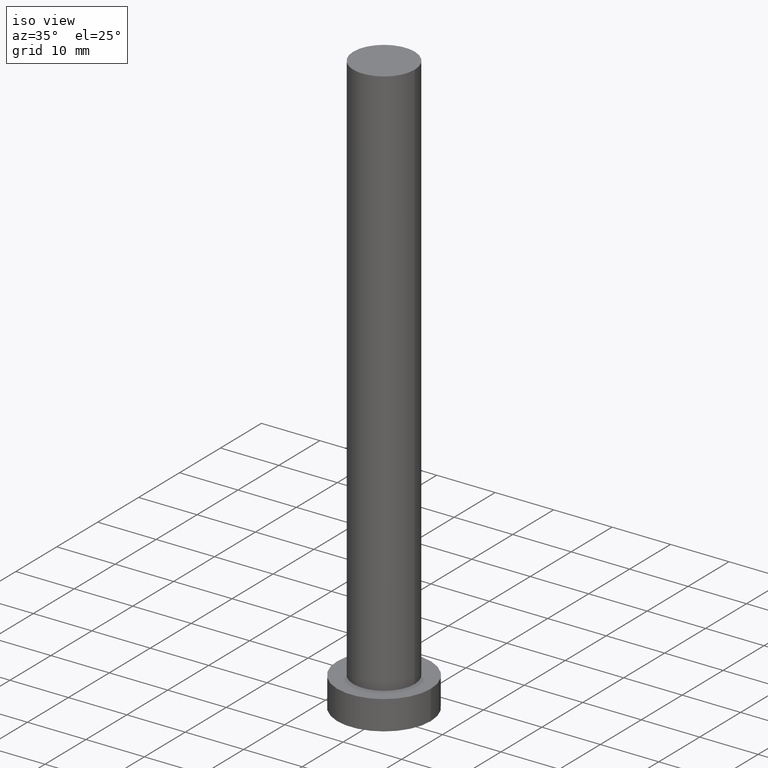
[diagram: clean part render]
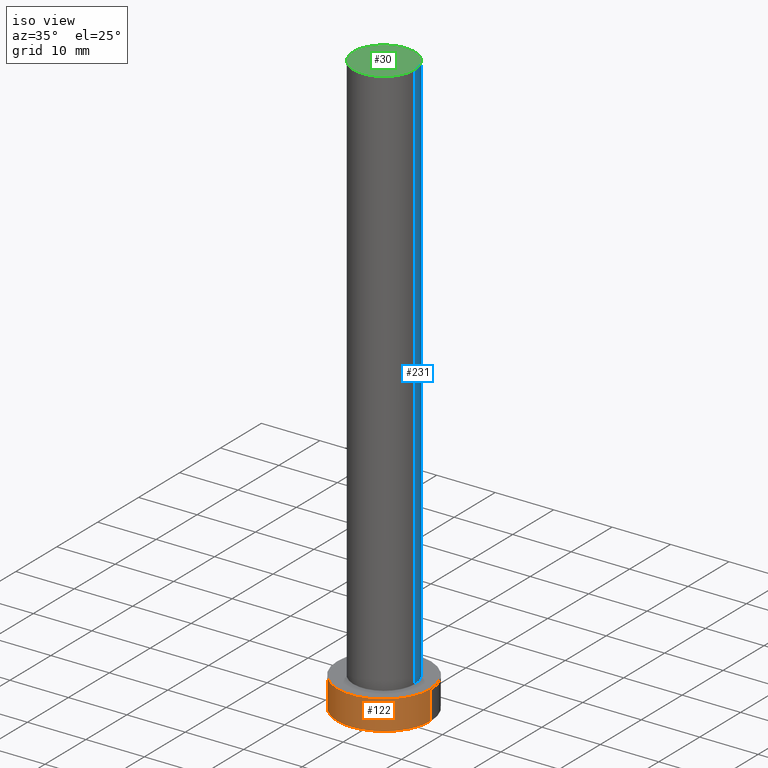
[diagram: same view with three faces highlighted in distinct colors, each labeled with its STEP entity id]
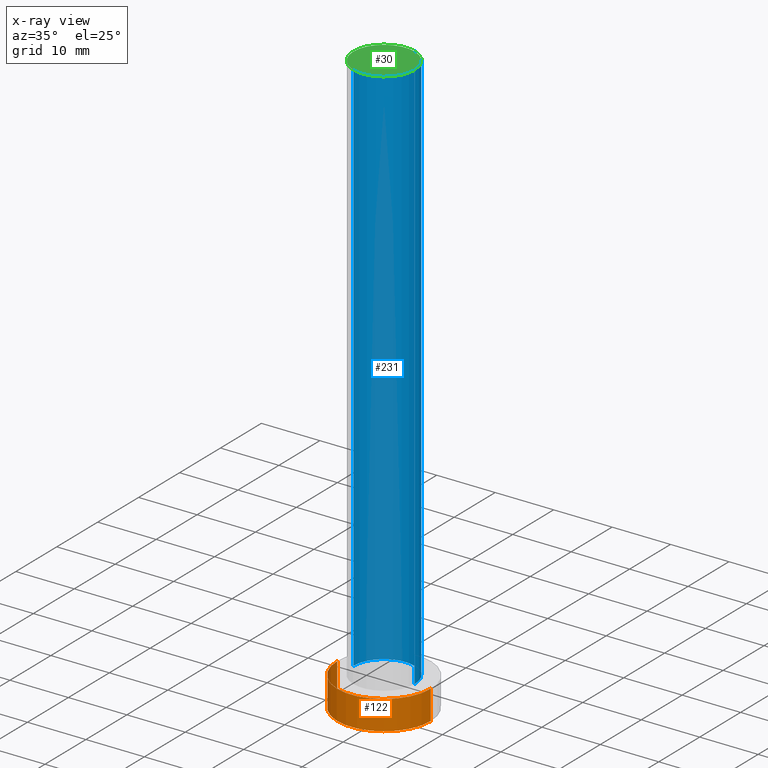
[diagram: x-ray of the same camera — body ghosted, the three highlighted faces saturated]
A machine part, iso view with three faces highlighted in distinct colors.
The next image is the same camera in x-ray (body ghosted, the three faces saturated) — at least one of them is partly hidden behind the body in this view.
Their STEP definitions:

[orange] entity #122 — the highlighted cylindrical surface (partial cylindrical patch) has radius 8 mm, axis along (-0, -0, -1).
#12 = DIRECTION ( 'NONE',  ( 0.000000000000000000, 0.000000000000000000, 1.000000000000000000 ) ) ;
#13 = CARTESIAN_POINT ( 'NONE',  ( 8.000000000000000000, 9.797174393178825657E-16, 5.000000000000000000 ) ) ;
#15 = CIRCLE ( 'NONE', #97, 8.000000000000000000 ) ;
#17 = DIRECTION ( 'NONE',  ( -1.000000000000000000, 0.000000000000000000, 0.000000000000000000 ) ) ;
#20 = VECTOR ( 'NONE', #125, 1000.000000000000000 ) ;
#22 = CARTESIAN_POINT ( 'NONE',  ( -8.000000000000000000, 0.000000000000000000, 0.000000000000000000 ) ) ;
#52 = VERTEX_POINT ( 'NONE', #248 ) ;
#57 = FACE_OUTER_BOUND ( 'NONE', #60, .T. ) ;
#60 = EDGE_LOOP ( 'NONE', ( #134, #133, #76, #199 ) ) ;
#76 = ORIENTED_EDGE ( 'NONE', *, *, #109, .T. ) ;
#90 = DIRECTION ( 'NONE',  ( -0.000000000000000000, -0.000000000000000000, -1.000000000000000000 ) ) ;
#94 = VERTEX_POINT ( 'NONE', #22 ) ;
#95 = CARTESIAN_POINT ( 'NONE',  ( -8.000000000000000000, 0.000000000000000000, 5.000000000000000000 ) ) ;
#96 = CARTESIAN_POINT ( 'NONE',  ( 0.000000000000000000, 0.000000000000000000, 5.000000000000000000 ) ) ;
#97 = AXIS2_PLACEMENT_3D ( 'NONE', #96, #255, #130 ) ;
#106 = CARTESIAN_POINT ( 'NONE',  ( 0.000000000000000000, 0.000000000000000000, 0.000000000000000000 ) ) ;
#109 = EDGE_CURVE ( 'NONE', #183, #94, #128, .T. ) ;
#114 = AXIS2_PLACEMENT_3D ( 'NONE', #213, #172, #17 ) ;
#115 = LINE ( 'NONE', #13, #204 ) ;
#116 = EDGE_CURVE ( 'NONE', #94, #178, #192, .T. ) ;
#122 = ADVANCED_FACE ( 'NONE', ( #57 ), #215, .T. ) ;
#125 = DIRECTION ( 'NONE',  ( -0.000000000000000000, -0.000000000000000000, -1.000000000000000000 ) ) ;
#128 = LINE ( 'NONE', #209, #20 ) ;
#130 = DIRECTION ( 'NONE',  ( 1.000000000000000000, 0.000000000000000000, 0.000000000000000000 ) ) ;
#133 = ORIENTED_EDGE ( 'NONE', *, *, #136, .F. ) ;
#134 = ORIENTED_EDGE ( 'NONE', *, *, #250, .F. ) ;
#136 = EDGE_CURVE ( 'NONE', #183, #52, #15, .T. ) ;
#170 = DIRECTION ( 'NONE',  ( 1.000000000000000000, 0.000000000000000000, 0.000000000000000000 ) ) ;
#172 = DIRECTION ( 'NONE',  ( -0.000000000000000000, -0.000000000000000000, -1.000000000000000000 ) ) ;
#176 = AXIS2_PLACEMENT_3D ( 'NONE', #106, #12, #170 ) ;
#178 = VERTEX_POINT ( 'NONE', #237 ) ;
#183 = VERTEX_POINT ( 'NONE', #95 ) ;
#192 = CIRCLE ( 'NONE', #176, 8.000000000000000000 ) ;
#199 = ORIENTED_EDGE ( 'NONE', *, *, #116, .T. ) ;
#204 = VECTOR ( 'NONE', #90, 1000.000000000000000 ) ;
#209 = CARTESIAN_POINT ( 'NONE',  ( -8.000000000000000000, 0.000000000000000000, 5.000000000000000000 ) ) ;
#213 = CARTESIAN_POINT ( 'NONE',  ( 0.000000000000000000, 0.000000000000000000, 5.000000000000000000 ) ) ;
#215 = CYLINDRICAL_SURFACE ( 'NONE', #114, 8.000000000000000000 ) ;
#237 = CARTESIAN_POINT ( 'NONE',  ( 8.000000000000000000, 9.797174393178825657E-16, 0.000000000000000000 ) ) ;
#248 = CARTESIAN_POINT ( 'NONE',  ( 8.000000000000000000, 9.797174393178825657E-16, 5.000000000000000000 ) ) ;
#250 = EDGE_CURVE ( 'NONE', #52, #178, #115, .T. ) ;
#255 = DIRECTION ( 'NONE',  ( 0.000000000000000000, 0.000000000000000000, 1.000000000000000000 ) ) ;

[blue] entity #231 — the highlighted cylindrical surface (partial cylindrical patch) has radius 5.25 mm, axis along (-0, -0, -1).
#5 = CARTESIAN_POINT ( 'NONE',  ( 0.000000000000000000, 0.000000000000000000, 100.0000000000000000 ) ) ;
#24 = CARTESIAN_POINT ( 'NONE',  ( -5.250000000000000888, 0.000000000000000000, 100.0000000000000000 ) ) ;
#25 = DIRECTION ( 'NONE',  ( -1.000000000000000000, 0.000000000000000000, 0.000000000000000000 ) ) ;
#27 = VECTOR ( 'NONE', #236, 1000.000000000000000 ) ;
#33 = DIRECTION ( 'NONE',  ( 0.000000000000000000, 0.000000000000000000, 1.000000000000000000 ) ) ;
#37 = VERTEX_POINT ( 'NONE', #24 ) ;
#39 = EDGE_CURVE ( 'NONE', #157, #37, #80, .T. ) ;
#47 = LINE ( 'NONE', #50, #228 ) ;
#50 = CARTESIAN_POINT ( 'NONE',  ( 5.250000000000000888, 6.429395695523605139E-16, 100.0000000000000000 ) ) ;
#55 = CIRCLE ( 'NONE', #225, 5.250000000000000888 ) ;
#58 = ORIENTED_EDGE ( 'NONE', *, *, #244, .T. ) ;
#61 = AXIS2_PLACEMENT_3D ( 'NONE', #5, #160, #25 ) ;
#63 = ORIENTED_EDGE ( 'NONE', *, *, #188, .T. ) ;
#74 = CARTESIAN_POINT ( 'NONE',  ( 5.250000000000000888, 6.429395695523605139E-16, 100.0000000000000000 ) ) ;
#80 = CIRCLE ( 'NONE', #131, 5.250000000000000888 ) ;
#87 = DIRECTION ( 'NONE',  ( -0.000000000000000000, -0.000000000000000000, -1.000000000000000000 ) ) ;
#93 = ORIENTED_EDGE ( 'NONE', *, *, #39, .F. ) ;
#110 = CARTESIAN_POINT ( 'NONE',  ( 0.000000000000000000, 0.000000000000000000, 5.000000000000000000 ) ) ;
#131 = AXIS2_PLACEMENT_3D ( 'NONE', #247, #206, #245 ) ;
#140 = CARTESIAN_POINT ( 'NONE',  ( -5.250000000000000888, 0.000000000000000000, 100.0000000000000000 ) ) ;
#157 = VERTEX_POINT ( 'NONE', #74 ) ;
#159 = CARTESIAN_POINT ( 'NONE',  ( -5.250000000000000888, 0.000000000000000000, 5.000000000000000000 ) ) ;
#160 = DIRECTION ( 'NONE',  ( -0.000000000000000000, -0.000000000000000000, -1.000000000000000000 ) ) ;
#175 = VERTEX_POINT ( 'NONE', #234 ) ;
#181 = LINE ( 'NONE', #140, #27 ) ;
#184 = EDGE_LOOP ( 'NONE', ( #93, #63, #58, #217 ) ) ;
#188 = EDGE_CURVE ( 'NONE', #157, #175, #47, .T. ) ;
#190 = CYLINDRICAL_SURFACE ( 'NONE', #61, 5.250000000000000888 ) ;
#202 = EDGE_CURVE ( 'NONE', #37, #238, #181, .T. ) ;
#206 = DIRECTION ( 'NONE',  ( 0.000000000000000000, 0.000000000000000000, 1.000000000000000000 ) ) ;
#211 = FACE_OUTER_BOUND ( 'NONE', #184, .T. ) ;
#217 = ORIENTED_EDGE ( 'NONE', *, *, #202, .F. ) ;
#225 = AXIS2_PLACEMENT_3D ( 'NONE', #110, #33, #252 ) ;
#228 = VECTOR ( 'NONE', #87, 1000.000000000000000 ) ;
#231 = ADVANCED_FACE ( 'NONE', ( #211 ), #190, .T. ) ;
#234 = CARTESIAN_POINT ( 'NONE',  ( 5.250000000000000888, 6.429395695523605139E-16, 5.000000000000000000 ) ) ;
#236 = DIRECTION ( 'NONE',  ( -0.000000000000000000, -0.000000000000000000, -1.000000000000000000 ) ) ;
#238 = VERTEX_POINT ( 'NONE', #159 ) ;
#244 = EDGE_CURVE ( 'NONE', #175, #238, #55, .T. ) ;
#245 = DIRECTION ( 'NONE',  ( 1.000000000000000000, 0.000000000000000000, 0.000000000000000000 ) ) ;
#247 = CARTESIAN_POINT ( 'NONE',  ( 0.000000000000000000, 0.000000000000000000, 100.0000000000000000 ) ) ;
#252 = DIRECTION ( 'NONE',  ( 1.000000000000000000, 0.000000000000000000, 0.000000000000000000 ) ) ;

[green] entity #30 — the highlighted planar face has unit normal (0, 0, 1).
#7 = CARTESIAN_POINT ( 'NONE',  ( 0.000000000000000000, 0.000000000000000000, 100.0000000000000000 ) ) ;
#16 = ORIENTED_EDGE ( 'NONE', *, *, #39, .T. ) ;
#18 = EDGE_LOOP ( 'NONE', ( #92, #16 ) ) ;
#24 = CARTESIAN_POINT ( 'NONE',  ( -5.250000000000000888, 0.000000000000000000, 100.0000000000000000 ) ) ;
#30 = ADVANCED_FACE ( 'NONE', ( #162 ), #200, .T. ) ;
#37 = VERTEX_POINT ( 'NONE', #24 ) ;
#39 = EDGE_CURVE ( 'NONE', #157, #37, #80, .T. ) ;
#54 = DIRECTION ( 'NONE',  ( 0.000000000000000000, 0.000000000000000000, 1.000000000000000000 ) ) ;
#72 = CIRCLE ( 'NONE', #224, 5.250000000000000888 ) ;
#74 = CARTESIAN_POINT ( 'NONE',  ( 5.250000000000000888, 6.429395695523605139E-16, 100.0000000000000000 ) ) ;
#80 = CIRCLE ( 'NONE', #131, 5.250000000000000888 ) ;
#92 = ORIENTED_EDGE ( 'NONE', *, *, #120, .T. ) ;
#120 = EDGE_CURVE ( 'NONE', #37, #157, #72, .T. ) ;
#131 = AXIS2_PLACEMENT_3D ( 'NONE', #247, #206, #245 ) ;
#142 = DIRECTION ( 'NONE',  ( 1.000000000000000000, 0.000000000000000000, -0.000000000000000000 ) ) ;
#153 = CARTESIAN_POINT ( 'NONE',  ( 0.000000000000000000, 0.000000000000000000, 100.0000000000000000 ) ) ;
#156 = DIRECTION ( 'NONE',  ( 1.000000000000000000, 0.000000000000000000, 0.000000000000000000 ) ) ;
#157 = VERTEX_POINT ( 'NONE', #74 ) ;
#162 = FACE_OUTER_BOUND ( 'NONE', #18, .T. ) ;
#200 = PLANE ( 'NONE',  #235 ) ;
#206 = DIRECTION ( 'NONE',  ( 0.000000000000000000, 0.000000000000000000, 1.000000000000000000 ) ) ;
#224 = AXIS2_PLACEMENT_3D ( 'NONE', #153, #54, #156 ) ;
#235 = AXIS2_PLACEMENT_3D ( 'NONE', #7, #239, #142 ) ;
#239 = DIRECTION ( 'NONE',  ( 0.000000000000000000, 0.000000000000000000, 1.000000000000000000 ) ) ;
#245 = DIRECTION ( 'NONE',  ( 1.000000000000000000, 0.000000000000000000, 0.000000000000000000 ) ) ;
#247 = CARTESIAN_POINT ( 'NONE',  ( 0.000000000000000000, 0.000000000000000000, 100.0000000000000000 ) ) ;